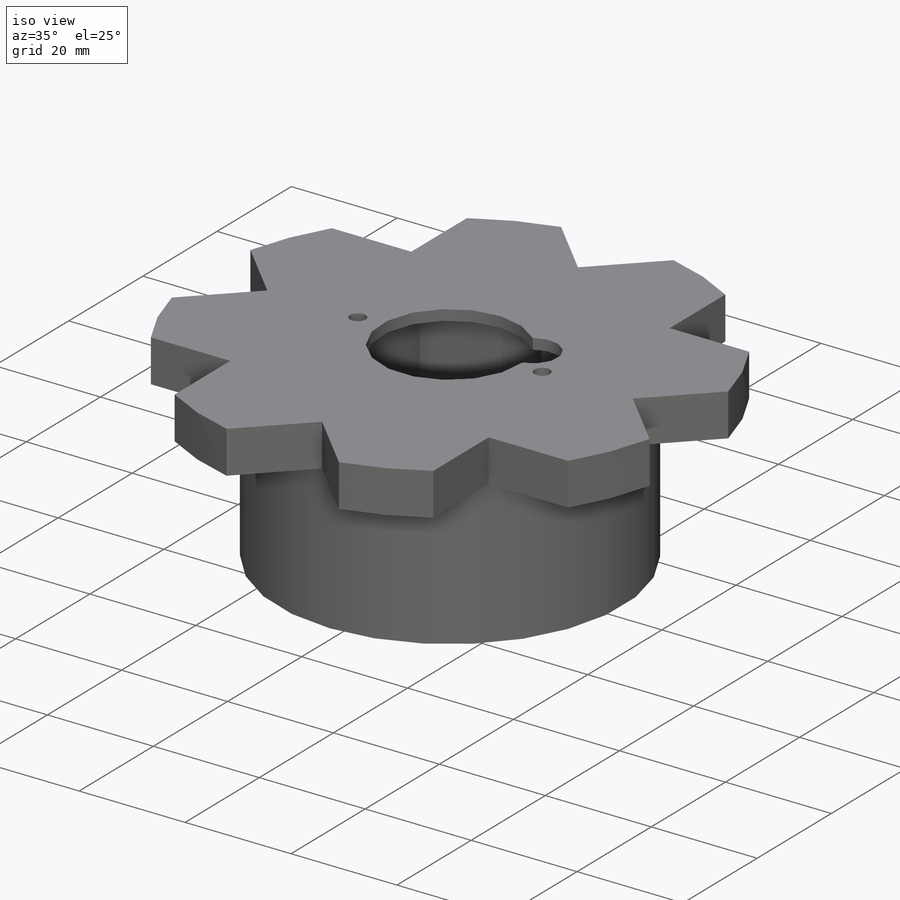
[diagram: iso view]
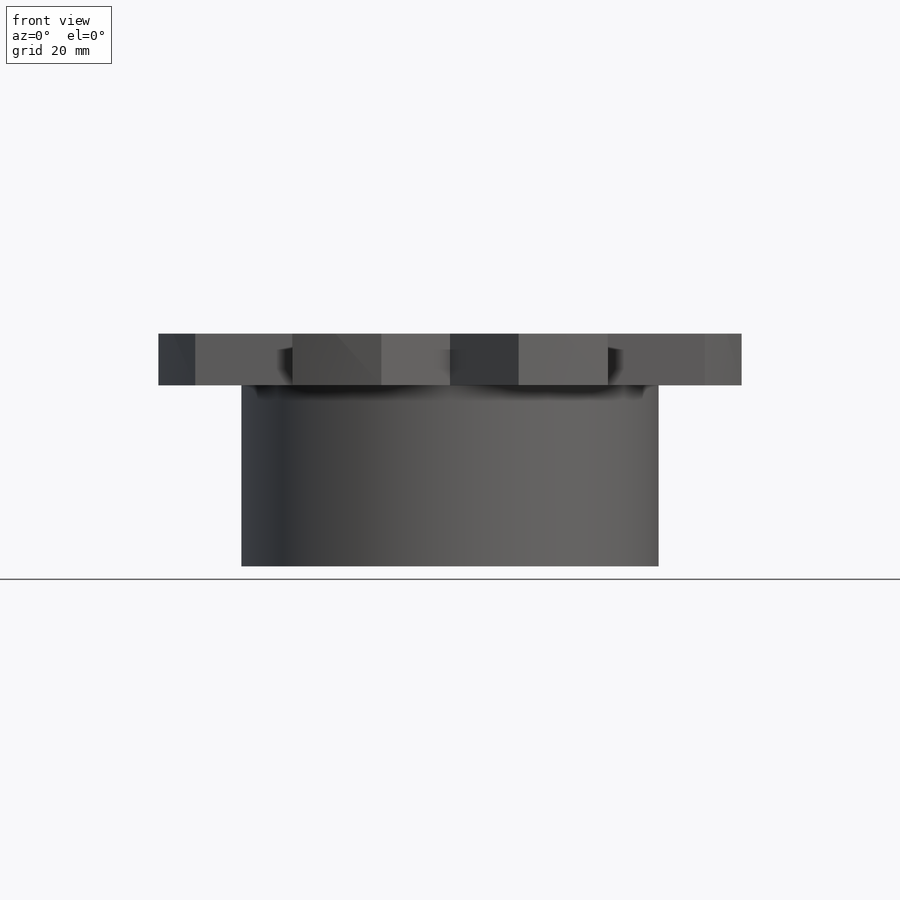
[diagram: front view]
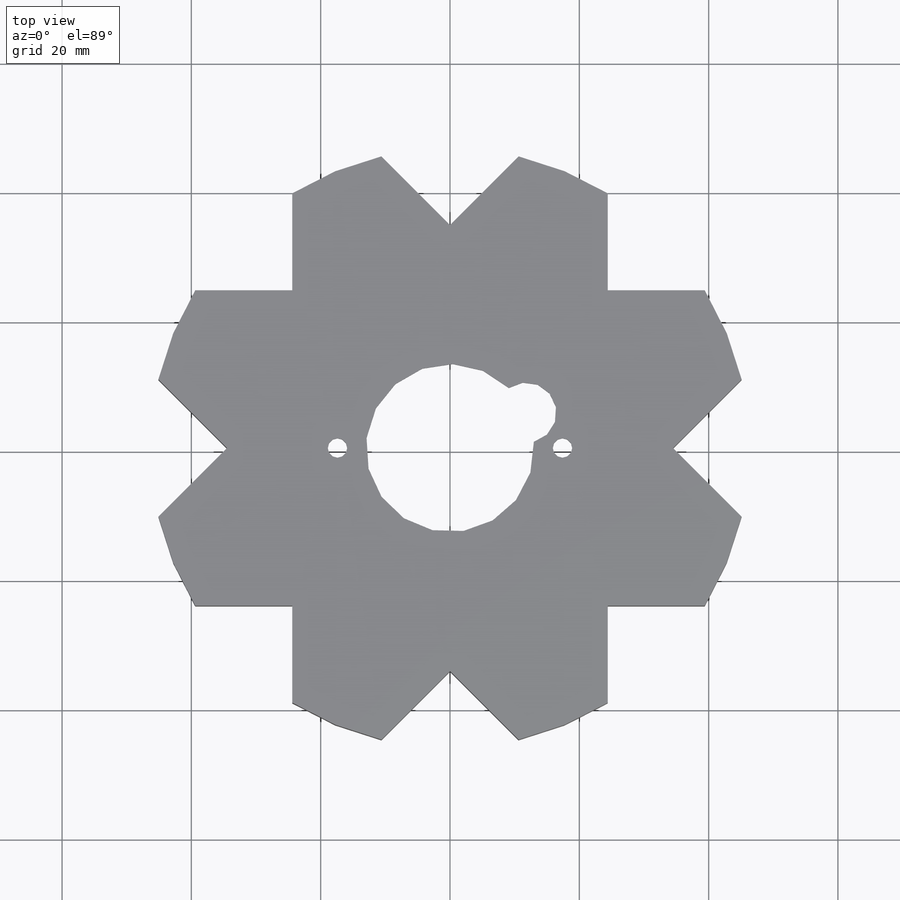
[diagram: top view]
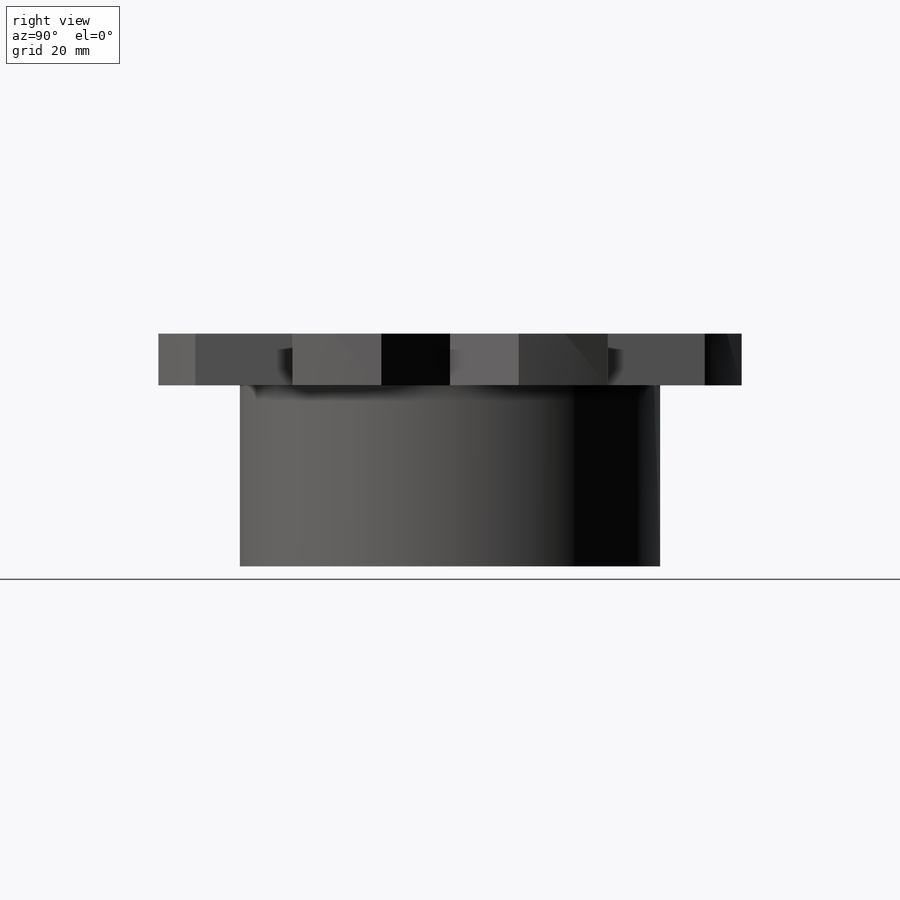
[diagram: right view]
SOLIDWORKS PART (.sldprt)
format: sldprt  version: not decoded by parser v0  size: 384,512 bytes
history: native  units: mm
features: sketch x8, cut_extrude x4, extrude x2, material x1, revolve x1, pattern_circular x1, cut_revolve x1, fillet x1 (+13 scaffold rows collapsed)
feature tree (32):
  scaffold x13  (default folders/planes/origin — collapsed)
  material  "Material <not specified>"
  sketch  "Sketch2"  dims[c1.D1=13.0mm c1.D2=21.5mm c1.D3=21.5mm c2.D2=10.0mm c2.D4=36.0mm c2.D5=1.0mm c2.D3=22.5mm]
  revolve  "Revolve1"  Angle=360deg
  sketch  "Sketch3"  dims[D2=3.0mm D1=17.4mm]
  cut_extrude  "Cut-Extrude1"  Depth=20mm
  sketch  "Sketch4"  dims[c1.D1=~3.114523mm c2.D1=90.0deg c2.D2=20.0mm c2.D3=~20.225705mm c3.D3=45.0deg c3.D4=30.0mm c3.D2=15.0mm c4.D4=2.0mm]
  extrude  "Boss-Extrude2"  Depth=8mm
  pattern_circular  "CirPattern1"  Count=8 Angle=360deg
  sketch  "Sketch5"
  cut_extrude  "Cut-Extrude2"  [1 undecoded]
  sketch  "Sketch6"  dims[c1.D1=7.0mm c1.D3=7.0mm c2.D1=12.0mm c2.D2=30.0mm]
  cut_extrude  "Cut-Extrude3"  Depth=1mm
  sketch  "Sketch7"  dims[c1.D1=1.0mm c1.D2=0.5mm c1.D3=2.0mm c1.D4=9.0mm c1.D5=10.0mm c2.D4=4.0mm c2.D6=35.0mm]
  cut_revolve  "Cut-Revolve1"  Angle=360deg
  fillet  "Fillet2"  Radius=12mm
  sketch  "Sketch8"  dims[D3=8.0mm D1=39.0mm D2=39.0mm]
  cut_extrude  "Cut-Extrude4"  Depth=34mm
  sketch  "Sketch9"  dims[c1.D1=22.5mm c1.D2=7.5mm c2.D1=0.5mm c2.D2=0.5mm c2.D3=2.0mm]
  extrude  "Boss-Extrude3"  Depth=7mm
decode coverage: 16 of 18 modeling features carry decoded parameters
note: ~ marks probable driven/reference dimensions
note: 1 parameter value undecoded
note: suppression state not decoded; provenance and decode notes live in map.json
